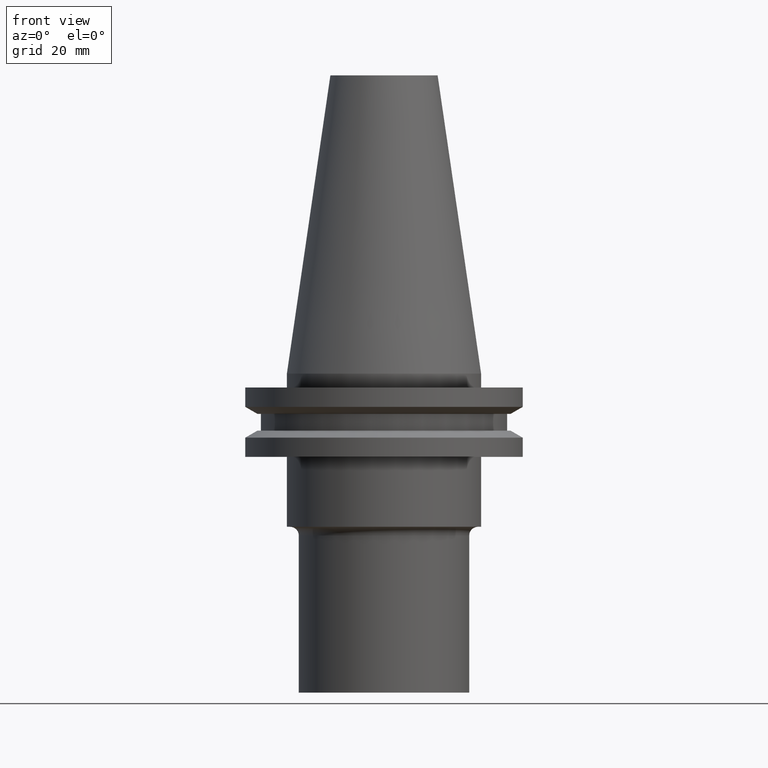
[diagram: clean part render]
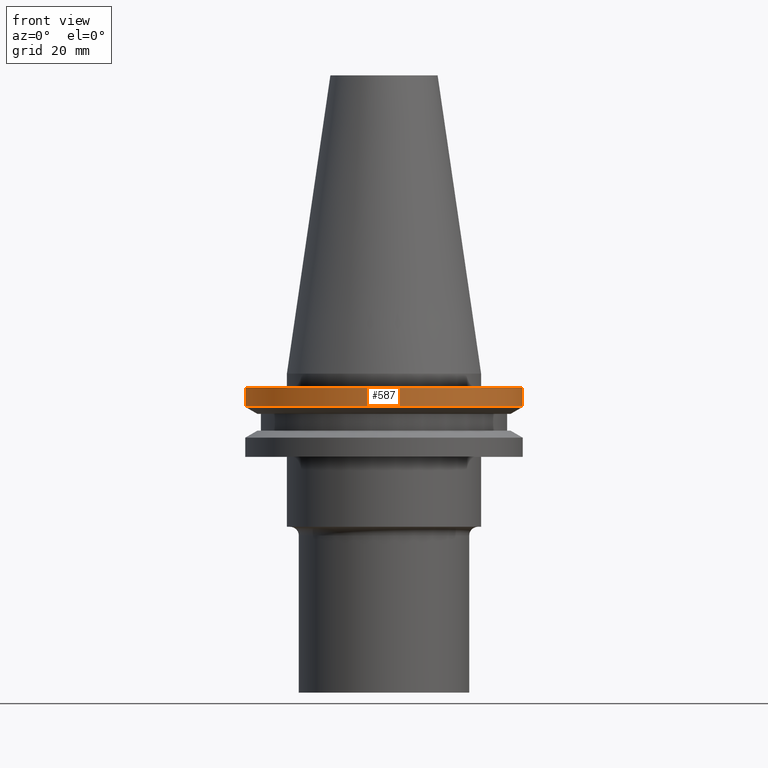
[diagram: same view with one face highlighted and labeled with its STEP entity id]
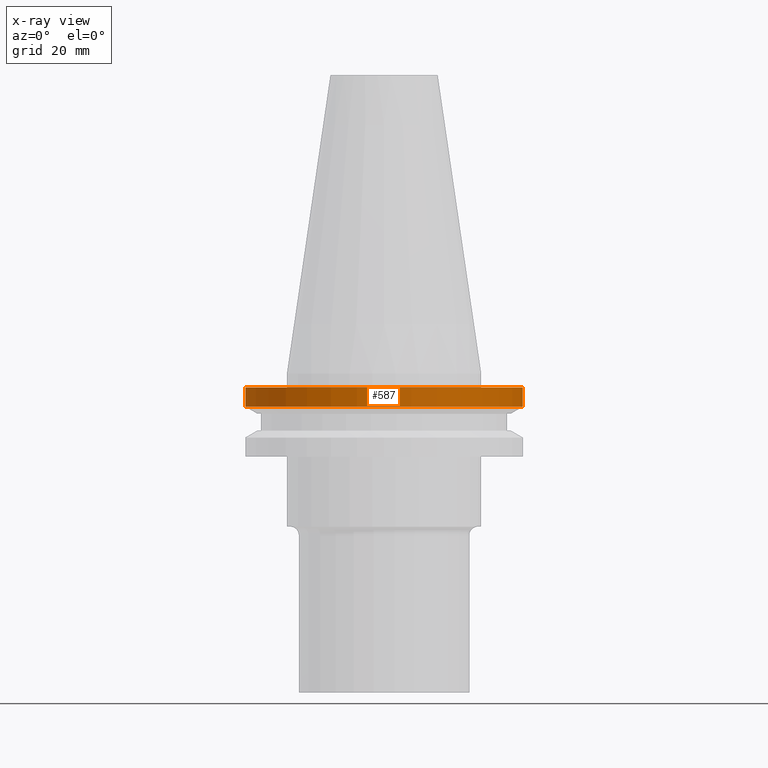
[diagram: x-ray of the same camera — body ghosted, the highlighted face saturated]
A machine part, front view. The second image highlights one B-rep face of the part: STEP entity #587.
The next image is the same camera in x-ray: the body ghosted, the highlighted face saturated — about 0% of this face is hidden behind the body in this view.
In plain terms, the highlighted cylindrical surface (partial cylindrical patch) has radius 31.75 mm, axis along (-0, -0, 1).
Its self-contained STEP definition (entity closure, byte-faithful):
#17 = VERTEX_POINT ( 'NONE', #257 ) ;
#26 = DIRECTION ( 'NONE',  ( -0.000000000000000000, -0.000000000000000000, 1.000000000000000000 ) ) ;
#34 = VERTEX_POINT ( 'NONE', #435 ) ;
#76 = VECTOR ( 'NONE', #552, 1000.000000000000000 ) ;
#79 = AXIS2_PLACEMENT_3D ( 'NONE', #597, #356, #240 ) ;
#96 = CARTESIAN_POINT ( 'NONE',  ( 31.75000000000000000, 0.000000000000000000, -7.605276606597335842 ) ) ;
#111 = DIRECTION ( 'NONE',  ( 1.000000000000000000, 0.000000000000000000, 0.000000000000000000 ) ) ;
#141 = LINE ( 'NONE', #491, #76 ) ;
#190 = EDGE_LOOP ( 'NONE', ( #513, #343, #525, #698 ) ) ;
#191 = DIRECTION ( 'NONE',  ( -0.000000000000000000, -0.000000000000000000, 1.000000000000000000 ) ) ;
#240 = DIRECTION ( 'NONE',  ( 1.000000000000000000, 0.000000000000000000, 0.000000000000000000 ) ) ;
#257 = CARTESIAN_POINT ( 'NONE',  ( -31.75000000000000000, 3.888253587292846476E-15, -3.174999999999997158 ) ) ;
#328 = LINE ( 'NONE', #566, #724 ) ;
#337 = CARTESIAN_POINT ( 'NONE',  ( 0.000000000000000000, 0.000000000000000000, 68.25000000000000000 ) ) ;
#343 = ORIENTED_EDGE ( 'NONE', *, *, #388, .T. ) ;
#356 = DIRECTION ( 'NONE',  ( -0.000000000000000000, -0.000000000000000000, 1.000000000000000000 ) ) ;
#388 = EDGE_CURVE ( 'NONE', #34, #601, #412, .T. ) ;
#393 = CYLINDRICAL_SURFACE ( 'NONE', #657, 31.75000000000000000 ) ;
#412 = CIRCLE ( 'NONE', #79, 31.75000000000000000 ) ;
#435 = CARTESIAN_POINT ( 'NONE',  ( -31.75000000000000000, 3.888253587292846476E-15, -7.605276606597335842 ) ) ;
#445 = EDGE_CURVE ( 'NONE', #17, #763, #711, .T. ) ;
#447 = DIRECTION ( 'NONE',  ( -0.000000000000000000, -0.000000000000000000, 1.000000000000000000 ) ) ;
#483 = CARTESIAN_POINT ( 'NONE',  ( 0.000000000000000000, 0.000000000000000000, -3.174999999999997158 ) ) ;
#491 = CARTESIAN_POINT ( 'NONE',  ( 31.75000000000000000, 0.000000000000000000, 68.25000000000000000 ) ) ;
#513 = ORIENTED_EDGE ( 'NONE', *, *, #722, .F. ) ;
#525 = ORIENTED_EDGE ( 'NONE', *, *, #596, .T. ) ;
#552 = DIRECTION ( 'NONE',  ( -0.000000000000000000, -0.000000000000000000, 1.000000000000000000 ) ) ;
#566 = CARTESIAN_POINT ( 'NONE',  ( -31.75000000000000000, 3.888253587292846476E-15, 68.25000000000000000 ) ) ;
#570 = DIRECTION ( 'NONE',  ( 1.000000000000000000, 0.000000000000000000, 0.000000000000000000 ) ) ;
#587 = ADVANCED_FACE ( 'NONE', ( #634 ), #393, .T. ) ;
#596 = EDGE_CURVE ( 'NONE', #601, #763, #141, .T. ) ;
#597 = CARTESIAN_POINT ( 'NONE',  ( 0.000000000000000000, 0.000000000000000000, -7.605276606597335842 ) ) ;
#601 = VERTEX_POINT ( 'NONE', #96 ) ;
#608 = AXIS2_PLACEMENT_3D ( 'NONE', #483, #191, #111 ) ;
#634 = FACE_OUTER_BOUND ( 'NONE', #190, .T. ) ;
#657 = AXIS2_PLACEMENT_3D ( 'NONE', #337, #447, #570 ) ;
#698 = ORIENTED_EDGE ( 'NONE', *, *, #445, .F. ) ;
#705 = CARTESIAN_POINT ( 'NONE',  ( 31.75000000000000000, 0.000000000000000000, -3.174999999999997158 ) ) ;
#711 = CIRCLE ( 'NONE', #608, 31.75000000000000000 ) ;
#722 = EDGE_CURVE ( 'NONE', #34, #17, #328, .T. ) ;
#724 = VECTOR ( 'NONE', #26, 1000.000000000000000 ) ;
#763 = VERTEX_POINT ( 'NONE', #705 ) ;